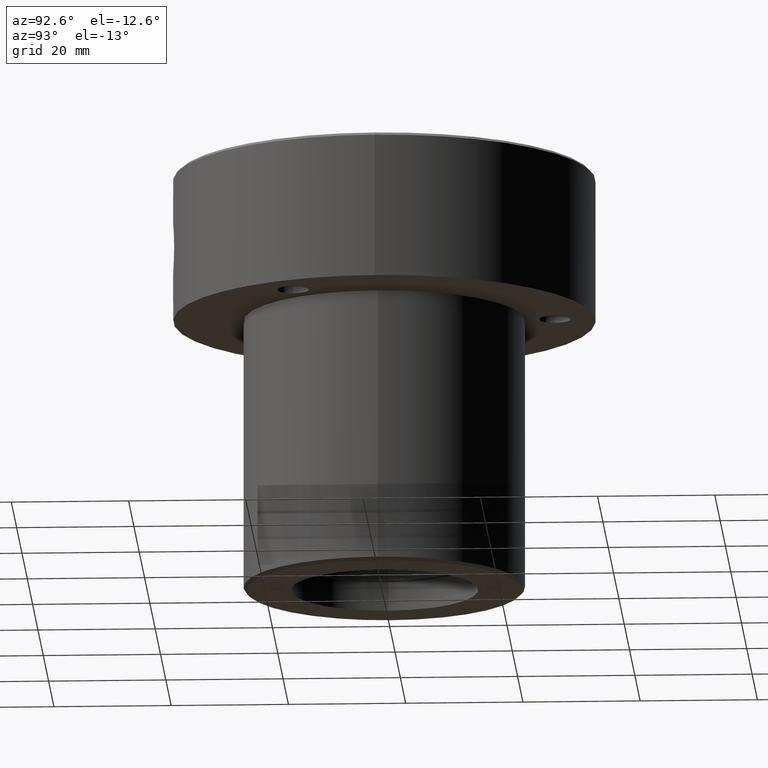
[diagram: clean part render]
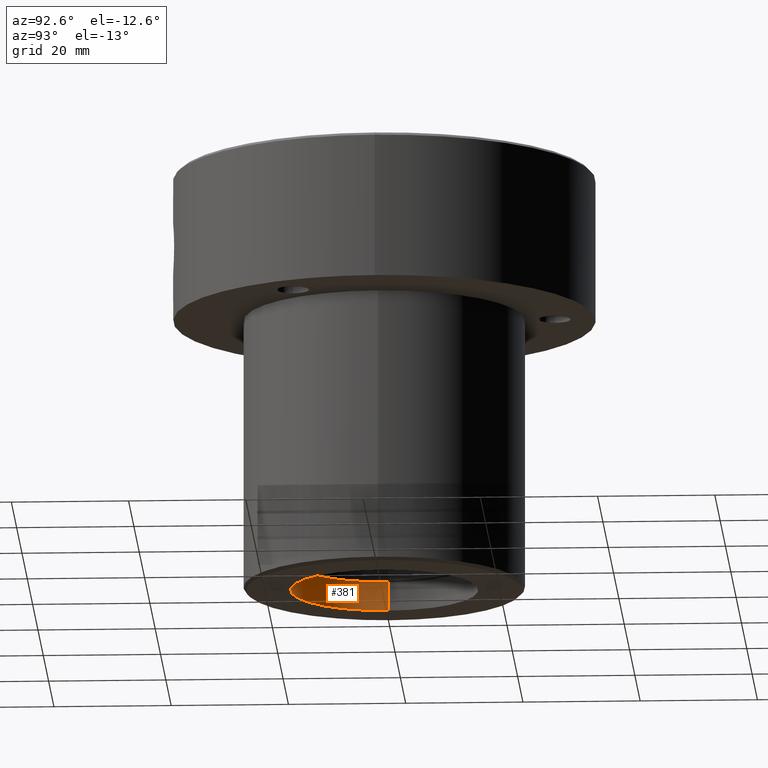
[diagram: same view with one face highlighted and labeled with its STEP entity id]
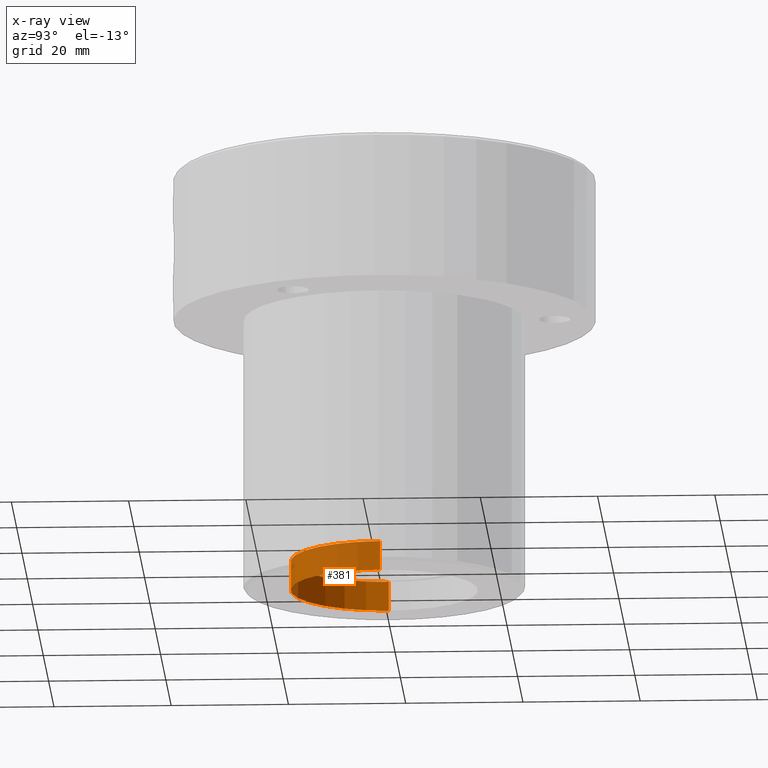
[diagram: x-ray of the same camera — body ghosted, the highlighted face saturated]
A machine part, auxiliary view. The second image highlights one B-rep face of the part: STEP entity #381.
The next image is the same camera in x-ray: the body ghosted, the highlighted face saturated — about 1% of this face is hidden behind the body in this view.
In plain terms, the highlighted cylindrical surface (partial cylindrical patch) has radius 16 mm, axis along (-0, -0, -1).
Its self-contained STEP definition (entity closure, byte-faithful):
#8 = DIRECTION ( 'NONE',  ( -0.000000000000000000, -0.000000000000000000, -1.000000000000000000 ) ) ;
#14 = DIRECTION ( 'NONE',  ( -0.000000000000000000, -0.000000000000000000, -1.000000000000000000 ) ) ;
#29 = AXIS2_PLACEMENT_3D ( 'NONE', #700, #509, #882 ) ;
#36 = CARTESIAN_POINT ( 'NONE',  ( -16.00000000000000000, 0.000000000000000000, -66.99999999999998579 ) ) ;
#85 = AXIS2_PLACEMENT_3D ( 'NONE', #971, #14, #990 ) ;
#90 = CIRCLE ( 'NONE', #29, 16.00000000000000000 ) ;
#119 = ORIENTED_EDGE ( 'NONE', *, *, #671, .F. ) ;
#204 = LINE ( 'NONE', #592, #866 ) ;
#305 = CARTESIAN_POINT ( 'NONE',  ( 16.00000000000000000, 1.959434878635765131E-15, -72.00000000000000000 ) ) ;
#334 = EDGE_LOOP ( 'NONE', ( #921, #572, #445, #119 ) ) ;
#381 = ADVANCED_FACE ( 'NONE', ( #703 ), #889, .F. ) ;
#433 = EDGE_CURVE ( 'NONE', #1142, #672, #769, .T. ) ;
#445 = ORIENTED_EDGE ( 'NONE', *, *, #1128, .T. ) ;
#484 = EDGE_CURVE ( 'NONE', #1142, #1037, #204, .T. ) ;
#502 = VERTEX_POINT ( 'NONE', #1190 ) ;
#509 = DIRECTION ( 'NONE',  ( 0.000000000000000000, 0.000000000000000000, -1.000000000000000000 ) ) ;
#519 = DIRECTION ( 'NONE',  ( -0.000000000000000000, -0.000000000000000000, -1.000000000000000000 ) ) ;
#536 = AXIS2_PLACEMENT_3D ( 'NONE', #864, #1068, #1183 ) ;
#572 = ORIENTED_EDGE ( 'NONE', *, *, #484, .T. ) ;
#592 = CARTESIAN_POINT ( 'NONE',  ( 16.00000000000000000, 1.959434878635765131E-15, -66.99999999999998579 ) ) ;
#629 = LINE ( 'NONE', #36, #831 ) ;
#671 = EDGE_CURVE ( 'NONE', #672, #502, #629, .T. ) ;
#672 = VERTEX_POINT ( 'NONE', #899 ) ;
#700 = CARTESIAN_POINT ( 'NONE',  ( 0.000000000000000000, 0.000000000000000000, -72.00000000000000000 ) ) ;
#703 = FACE_OUTER_BOUND ( 'NONE', #334, .T. ) ;
#769 = CIRCLE ( 'NONE', #536, 16.00000000000000000 ) ;
#831 = VECTOR ( 'NONE', #519, 1000.000000000000000 ) ;
#864 = CARTESIAN_POINT ( 'NONE',  ( 0.000000000000000000, 0.000000000000000000, -66.99999999999998579 ) ) ;
#866 = VECTOR ( 'NONE', #8, 1000.000000000000000 ) ;
#882 = DIRECTION ( 'NONE',  ( -1.000000000000000000, 0.000000000000000000, 0.000000000000000000 ) ) ;
#889 = CYLINDRICAL_SURFACE ( 'NONE', #85, 16.00000000000000000 ) ;
#899 = CARTESIAN_POINT ( 'NONE',  ( -16.00000000000000000, 0.000000000000000000, -66.99999999999998579 ) ) ;
#921 = ORIENTED_EDGE ( 'NONE', *, *, #433, .F. ) ;
#971 = CARTESIAN_POINT ( 'NONE',  ( 0.000000000000000000, 0.000000000000000000, -66.99999999999998579 ) ) ;
#990 = DIRECTION ( 'NONE',  ( -1.000000000000000000, 0.000000000000000000, 0.000000000000000000 ) ) ;
#1037 = VERTEX_POINT ( 'NONE', #305 ) ;
#1068 = DIRECTION ( 'NONE',  ( 0.000000000000000000, 0.000000000000000000, -1.000000000000000000 ) ) ;
#1083 = CARTESIAN_POINT ( 'NONE',  ( 16.00000000000000000, 1.959434878635765131E-15, -66.99999999999998579 ) ) ;
#1128 = EDGE_CURVE ( 'NONE', #1037, #502, #90, .T. ) ;
#1142 = VERTEX_POINT ( 'NONE', #1083 ) ;
#1183 = DIRECTION ( 'NONE',  ( -1.000000000000000000, 0.000000000000000000, 0.000000000000000000 ) ) ;
#1190 = CARTESIAN_POINT ( 'NONE',  ( -16.00000000000000000, 0.000000000000000000, -72.00000000000000000 ) ) ;